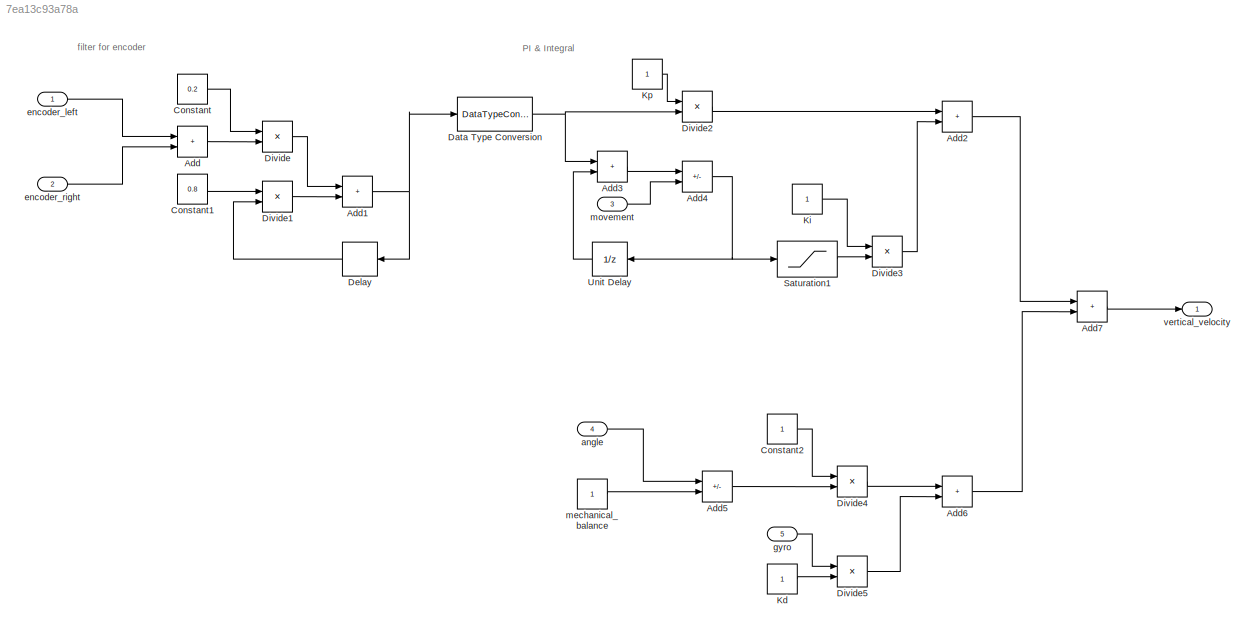
MODEL slx_7ea13c93a78a
KIND model
CONFIG AbsTol = auto
CONFIG EnableMultiTasking = off
CONFIG FixedStep = auto
CONFIG MaxStep = auto
CONFIG MinStep = auto
CONFIG RelTol = 1e-3
CONFIG SampleTimeConstraint = Unconstrained
CONFIG SolverName = FixedStepDiscrete
CONFIG StartTime = 0.0
CONFIG StopTime = 10.0
BLOCK [Sum] Add
  IconShape = rectangular
  Ports = [2, 1]
BLOCK [Sum] Add1
  IconShape = rectangular
  Ports = [2, 1]
BLOCK [Sum] Add2
  IconShape = rectangular
  Ports = [2, 1]
BLOCK [Sum] Add3
  IconShape = rectangular
  Ports = [2, 1]
BLOCK [Sum] Add4
  IconShape = rectangular
  Inputs = +-
  Ports = [2, 1]
BLOCK [Sum] Add5
  IconShape = rectangular
  Inputs = +-
  Ports = [2, 1]
BLOCK [Sum] Add6
  IconShape = rectangular
  Ports = [2, 1]
BLOCK [Sum] Add7
  IconShape = rectangular
  Ports = [2, 1]
BLOCK [Constant] Constant
  Value = 0.2
BLOCK [Constant] Constant1
  Value = 0.8
BLOCK [Constant] Constant2
BLOCK [DataTypeConversion] Data Type Conversion
  OutDataTypeStr = double
  RndMeth = Floor
  SaturateOnIntegerOverflow = off
BLOCK [Delay] Delay
  DelayLength = 1
  InitialCondition = 0
  InputPortMap = u0
  NameLocation = top
  Ports = [1, 1]
BLOCK [Product] Divide
  Inputs = **
  Ports = [2, 1]
BLOCK [Product] Divide1
  Inputs = **
  Ports = [2, 1]
BLOCK [Product] Divide2
  Inputs = **
  Ports = [2, 1]
BLOCK [Product] Divide3
  Inputs = **
  Ports = [2, 1]
BLOCK [Product] Divide4
  Inputs = **
  Ports = [2, 1]
BLOCK [Product] Divide5
  Inputs = **
  Ports = [2, 1]
BLOCK [Constant] Kd
BLOCK [Constant] Ki
BLOCK [Constant] Kp
BLOCK [Saturate] Saturation1
  LowerLimit = -10000
  UpperLimit = 10000
BLOCK [UnitDelay] Unit Delay
  HasFrameUpgradeWarning = on
  SampleTime = -1
BLOCK [Inport] angle
  Port = 4
BLOCK [Inport] encoder_left
BLOCK [Inport] encoder_right
  Port = 2
BLOCK [Inport] gyro
  Port = 5
BLOCK [Constant] mechanical_balance
BLOCK [Inport] movement
  Port = 3
BLOCK [Outport] vertical_velocity
ANNOTATION (root): PI & Integral
ANNOTATION (root): filter for encoder
NET Add1:1 -> Data Type Conversion:1, Delay:1
LINE Add2:1 -> Add7:1
LINE Add3:1 -> Add4:1
NET Add4:1 -> Saturation1:1, Unit Delay:1
LINE Add5:1 -> Divide4:2
LINE Add6:1 -> Add7:2
LINE Add7:1 -> vertical_velocity:1
LINE Add:1 -> Divide:2
LINE Constant1:1 -> Divide1:1
LINE Constant2:1 -> Divide4:1
LINE Constant:1 -> Divide:1
NET Data Type Conversion:1 -> Add3:1, Divide2:2
LINE Delay:1 -> Divide1:2
LINE Divide1:1 -> Add1:2
LINE Divide2:1 -> Add2:1
LINE Divide3:1 -> Add2:2
LINE Divide4:1 -> Add6:1
LINE Divide5:1 -> Add6:2
LINE Divide:1 -> Add1:1
LINE Kd:1 -> Divide5:2
LINE Ki:1 -> Divide3:1
LINE Kp:1 -> Divide2:1
LINE Saturation1:1 -> Divide3:2
LINE Unit Delay:1 -> Add3:2
LINE angle:1 -> Add5:1
LINE encoder_left:1 -> Add:1
LINE encoder_right:1 -> Add:2
LINE gyro:1 -> Divide5:1
LINE mechanical_balance:1 -> Add5:2
LINE movement:1 -> Add4:2
note: NET lines group one-source signal fan-out (src -> all destinations, sorted); 1:1 wires keep LINE
